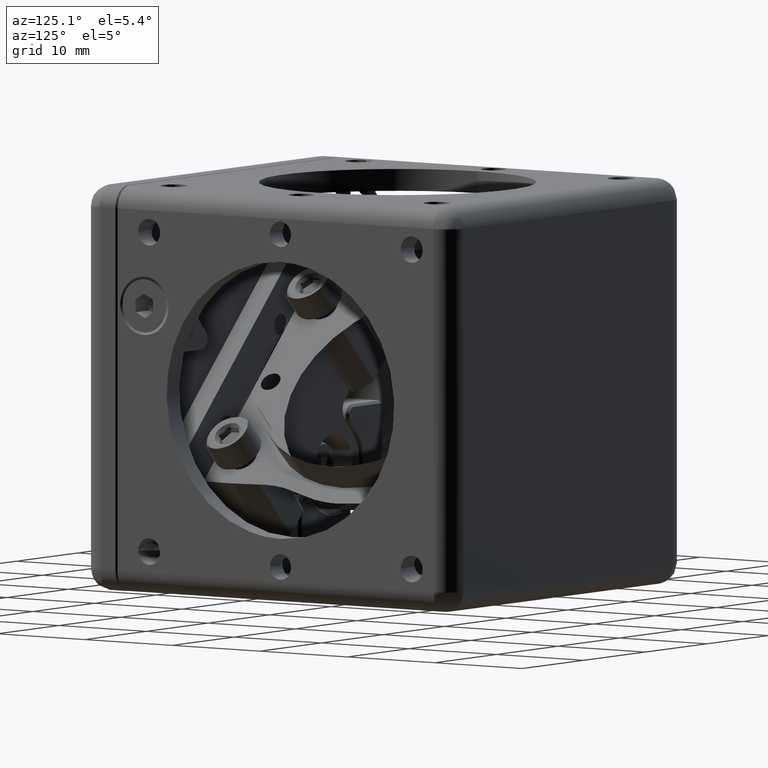
[diagram: clean part render]
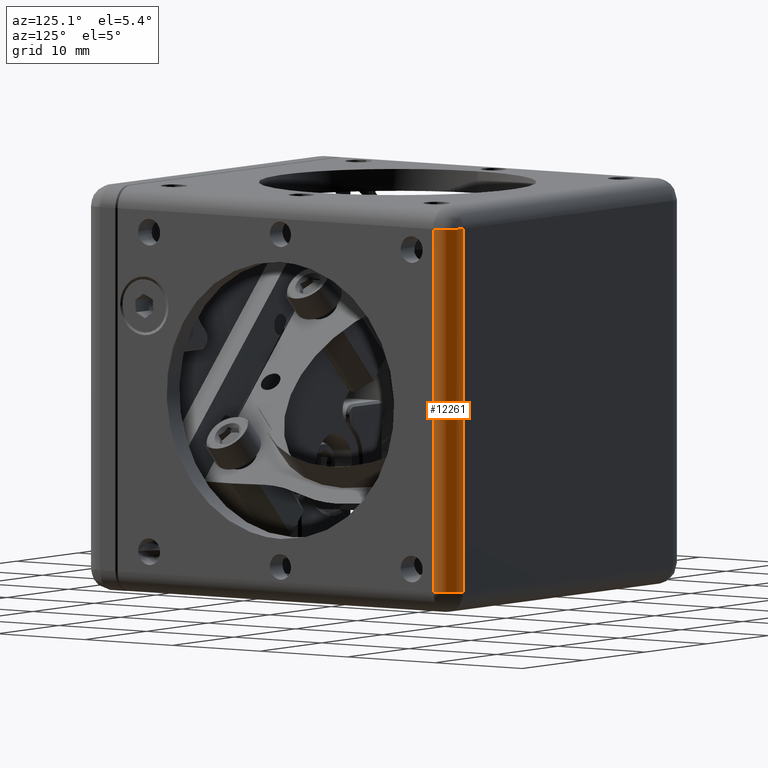
[diagram: same view with one face highlighted and labeled with its STEP entity id]
A machine part, auxiliary view. The second image highlights one B-rep face of the part: STEP entity #12261.
In plain terms, the highlighted face is a freeform B-spline surface patch.
Its self-contained STEP definition (entity closure, byte-faithful):
#190 = CARTESIAN_POINT ( 'NONE',  ( 18.22157287525370606, 40.09999999999990195, -17.05000000000000071 ) ) ;
#345 = CARTESIAN_POINT ( 'NONE',  ( 19.04999999999991189, 39.27157287525379559, -17.05000000000000071 ) ) ;
#1016 = CARTESIAN_POINT ( 'NONE',  ( 17.05000000000000071, 40.09999999999999432, 17.05000000000000071 ) ) ;
#1691 = EDGE_LOOP ( 'NONE', ( #6178, #10296, #8862, #2013 ) ) ;
#2013 = ORIENTED_EDGE ( 'NONE', *, *, #9433, .T. ) ;
#2797 = CARTESIAN_POINT ( 'NONE',  ( 18.22157287525380553, 40.10000000000002984, 17.04999999999990123 ) ) ;
#3496 = CARTESIAN_POINT ( 'NONE',  ( 17.05000000000000071, 40.09999999999999432, -17.05000000000000071 ) ) ;
#4217 = CARTESIAN_POINT ( 'NONE',  ( 17.05000000000000071, 40.09999999999999432, -17.05000000000000071 ) ) ;
#5181 = CARTESIAN_POINT ( 'NONE',  ( 17.05000000000000071, 40.09999999999999432, 17.05000000000000071 ) ) ;
#5718 = B_SPLINE_CURVE_WITH_KNOTS ( 'NONE', 1,
 ( #1016, #8402 ),
 .UNSPECIFIED., .F., .F.,
 ( 2, 2 ),
 ( 0.000000000000000000, 1.000000000000000000 ),
 .UNSPECIFIED. ) ;
#6178 = ORIENTED_EDGE ( 'NONE', *, *, #9396, .F. ) ;
#6677 = CARTESIAN_POINT ( 'NONE',  ( 19.05000000000000071, 38.10000000000000142, -17.05000000000000071 ) ) ;
#6903 = VERTEX_POINT ( 'NONE', #9820 ) ;
#7417 = CARTESIAN_POINT ( 'NONE',  ( 19.05000000000000071, 38.10000000000000142, -17.05000000000000071 ) ) ;
#7569 = CARTESIAN_POINT ( 'NONE',  ( 19.05000000000000071, 38.10000000000000142, 17.05000000000000071 ) ) ;
#8054 = CARTESIAN_POINT ( 'NONE',  ( 18.22157287525330815, 40.09999999999968878, 17.04999999999991189 ) ) ;
#8132 = CARTESIAN_POINT ( 'NONE',  ( 17.05000000000000071, 40.10000000000000142, 17.05000000000000071 ) ) ;
#8217 = VERTEX_POINT ( 'NONE', #11821 ) ;
#8402 = CARTESIAN_POINT ( 'NONE',  ( 17.05000000000000071, 40.09999999999999432, -17.05000000000000071 ) ) ;
#8854 =( BOUNDED_CURVE ( )  B_SPLINE_CURVE ( 3, ( #15535, #10610, #8054, #8132 ),
 .UNSPECIFIED., .F., .F. ) 
 B_SPLINE_CURVE_WITH_KNOTS ( ( 4, 4 ),
 ( 0.000000000000000000, 1.000000000000000000 ),
 .UNSPECIFIED. ) 
 CURVE ( )  GEOMETRIC_REPRESENTATION_ITEM ( )  RATIONAL_B_SPLINE_CURVE ( ( 0.9565783023472124169, 0.7697947703334255820, 0.7697947703341487813, 0.9565783023493816817 ) ) 
 REPRESENTATION_ITEM ( '' )  );
#8862 = ORIENTED_EDGE ( 'NONE', *, *, #15605, .F. ) ;
#8914 = CARTESIAN_POINT ( 'NONE',  ( 19.04999999999964189, 39.27157287525377427, -17.05000000000000071 ) ) ;
#9396 = EDGE_CURVE ( 'NONE', #11785, #6903, #14778, .T. ) ;
#9433 = EDGE_CURVE ( 'NONE', #11166, #6903, #11533, .T. ) ;
#9524 = CARTESIAN_POINT ( 'NONE',  ( 19.05000000000000071, 38.10000000000000142, 17.05000000000000071 ) ) ;
#9820 = CARTESIAN_POINT ( 'NONE',  ( 19.05000000000000071, 38.10000000000000142, -17.05000000000000071 ) ) ;
#9975 = CARTESIAN_POINT ( 'NONE',  ( 19.04999999999991189, 39.27157287525379559, 17.04999999999990123 ) ) ;
#10213 = EDGE_CURVE ( 'NONE', #8217, #11785, #5718, .T. ) ;
#10296 = ORIENTED_EDGE ( 'NONE', *, *, #10213, .F. ) ;
#10610 = CARTESIAN_POINT ( 'NONE',  ( 19.04999999999974492, 39.27157287525429297, 17.04999999999991545 ) ) ;
#11092 = FACE_OUTER_BOUND ( 'NONE', #1691, .T. ) ;
#11166 = VERTEX_POINT ( 'NONE', #9524 ) ;
#11312 = CARTESIAN_POINT ( 'NONE',  ( 18.22157287525374869, 40.09999999999974563, -17.05000000000000071 ) ) ;
#11399 = CARTESIAN_POINT ( 'NONE',  ( 17.05000000000000071, 40.09999999999999432, -17.05000000000000071 ) ) ;
#11533 = B_SPLINE_CURVE_WITH_KNOTS ( 'NONE', 1,
 ( #12578, #15196 ),
 .UNSPECIFIED., .F., .F.,
 ( 2, 2 ),
 ( 0.000000000000000000, 1.000000000000000000 ),
 .UNSPECIFIED. ) ;
#11785 = VERTEX_POINT ( 'NONE', #3496 ) ;
#11821 = CARTESIAN_POINT ( 'NONE',  ( 17.05000000000000071, 40.09999999999999432, 17.05000000000000071 ) ) ;
#12261 = ADVANCED_FACE ( 'NONE', ( #11092 ), #13187, .T. ) ;
#12578 = CARTESIAN_POINT ( 'NONE',  ( 19.05000000000000071, 38.10000000000000142, 17.05000000000000071 ) ) ;
#13187 =( BOUNDED_SURFACE ( )  B_SPLINE_SURFACE ( 3, 1, ( 
 ( #7417, #7569 ),
 ( #345, #9975 ),
 ( #190, #2797 ),
 ( #11399, #5181 ) ),
 .UNSPECIFIED., .F., .F., .F. ) 
 B_SPLINE_SURFACE_WITH_KNOTS ( ( 4, 4 ),
 ( 2, 2 ),
 ( 0.000000000000000000, 1.000000000000000000 ),
 ( 0.000000000000000000, 1.000000000000000000 ),
 .UNSPECIFIED. ) 
 GEOMETRIC_REPRESENTATION_ITEM ( )  RATIONAL_B_SPLINE_SURFACE ( (
 ( 1.000000000000000000, 1.000000000000000000),
 ( 0.8047378541243659367, 0.8047378541243659367),
 ( 0.8047378541243659367, 0.8047378541243659367),
 ( 1.000000000000000000, 1.000000000000000000) ) ) 
 REPRESENTATION_ITEM ( '' )  SURFACE ( )  );
#14778 =( BOUNDED_CURVE ( )  B_SPLINE_CURVE ( 3, ( #4217, #11312, #8914, #6677 ),
 .UNSPECIFIED., .F., .F. ) 
 B_SPLINE_CURVE_WITH_KNOTS ( ( 4, 4 ),
 ( 0.000000000000000000, 1.000000000000000000 ),
 .UNSPECIFIED. ) 
 CURVE ( )  GEOMETRIC_REPRESENTATION_ITEM ( )  RATIONAL_B_SPLINE_CURVE ( ( 0.9565783023495385562, 0.7697947703347934878, 0.7697947703347924886, 0.9565783023495351145 ) ) 
 REPRESENTATION_ITEM ( '' )  );
#15196 = CARTESIAN_POINT ( 'NONE',  ( 19.05000000000000071, 38.10000000000000142, -17.05000000000000071 ) ) ;
#15535 = CARTESIAN_POINT ( 'NONE',  ( 19.05000000000000071, 38.10000000000000142, 17.05000000000000071 ) ) ;
#15605 = EDGE_CURVE ( 'NONE', #11166, #8217, #8854, .T. ) ;